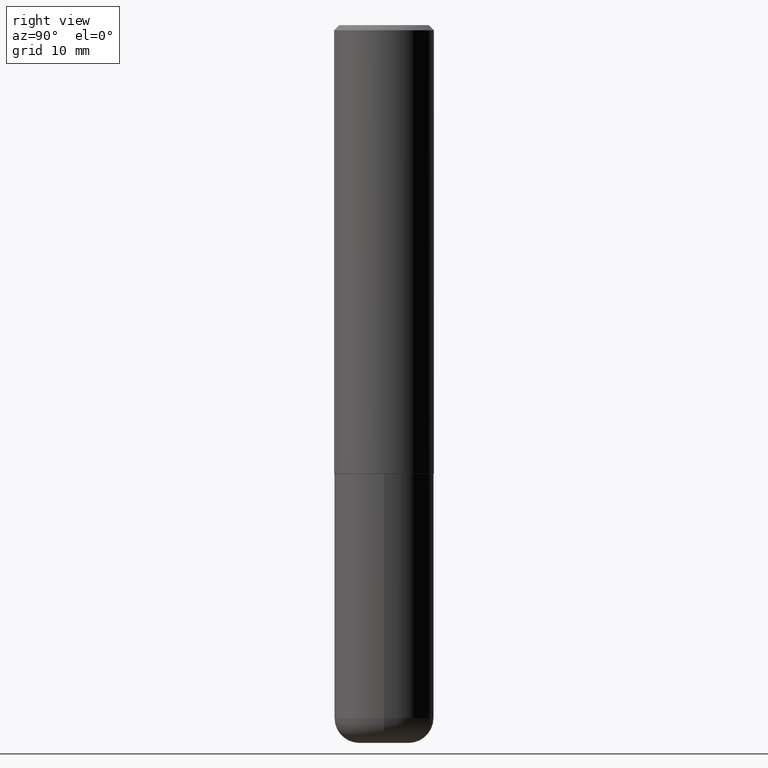
[diagram: clean part render]
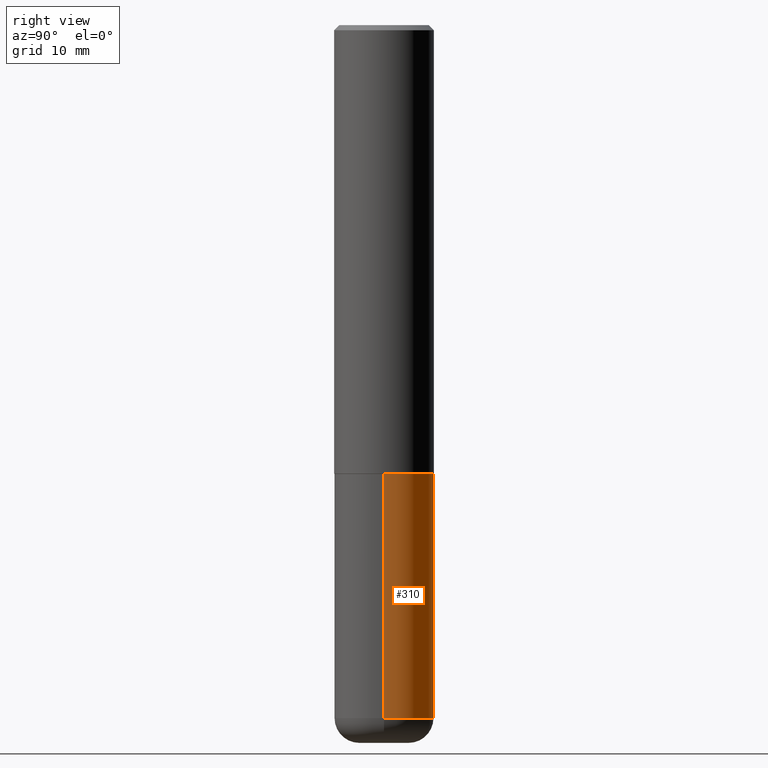
[diagram: same view with one face highlighted and labeled with its STEP entity id]
A machine part, right view. The second image highlights one B-rep face of the part: STEP entity #310.
In plain terms, the highlighted cylindrical surface (partial cylindrical patch) has radius 5 mm, axis along (-0, 0, 1).
Its self-contained STEP definition (entity closure, byte-faithful):
#5 = CARTESIAN_POINT ( 'NONE',  ( 0.000000000000000000, 0.000000000000000000, 0.000000000000000000 ) ) ;
#12 = VERTEX_POINT ( 'NONE', #279 ) ;
#14 = ORIENTED_EDGE ( 'NONE', *, *, #333, .T. ) ;
#29 = CYLINDRICAL_SURFACE ( 'NONE', #317, 0.1968499999999999694 ) ;
#30 = CARTESIAN_POINT ( 'NONE',  ( 6.691291747483769253E-29, -9.553391239342614783E-15, -2.736199999999999743 ) ) ;
#31 = DIRECTION ( 'NONE',  ( -2.445468806185136597E-29, 3.491481338843145583E-15, 1.000000000000000000 ) ) ;
#34 = LINE ( 'NONE', #89, #157 ) ;
#40 = VERTEX_POINT ( 'NONE', #352 ) ;
#41 = EDGE_LOOP ( 'NONE', ( #108, #14, #395, #402 ) ) ;
#54 = DIRECTION ( 'NONE',  ( -2.445468806185136877E-29, 3.491481338843145188E-15, 1.000000000000000000 ) ) ;
#55 = CIRCLE ( 'NONE', #221, 0.1968500000000000250 ) ;
#87 = CARTESIAN_POINT ( 'NONE',  ( 0.1968500000000001915, -1.092798744244515797E-14, -2.736199999999999743 ) ) ;
#89 = CARTESIAN_POINT ( 'NONE',  ( 0.1968499999999999694, -1.374596203102541411E-15, 9.598753983154298056E-30 ) ) ;
#96 = DIRECTION ( 'NONE',  ( -2.445468806185136877E-29, 3.491481338843145188E-15, 1.000000000000000000 ) ) ;
#105 = CARTESIAN_POINT ( 'NONE',  ( -0.1968499999999999694, 1.398703375343756999E-15, -9.682923725166782276E-30 ) ) ;
#108 = ORIENTED_EDGE ( 'NONE', *, *, #315, .T. ) ;
#143 = CARTESIAN_POINT ( 'NONE',  ( 4.332392537037587642E-29, -6.185508339894515992E-15, -1.771599999999999842 ) ) ;
#145 = EDGE_CURVE ( 'NONE', #12, #397, #383, .T. ) ;
#157 = VECTOR ( 'NONE', #54, 39.37007874015748143 ) ;
#158 = FACE_OUTER_BOUND ( 'NONE', #41, .T. ) ;
#164 = AXIS2_PLACEMENT_3D ( 'NONE', #143, #277, #408 ) ;
#173 = CARTESIAN_POINT ( 'NONE',  ( -0.1968499999999999694, -6.470746414274807600E-15, -1.771599999999999842 ) ) ;
#219 = DIRECTION ( 'NONE',  ( -2.445468806185136597E-29, 3.491481338843145583E-15, 1.000000000000000000 ) ) ;
#221 = AXIS2_PLACEMENT_3D ( 'NONE', #30, #31, #356 ) ;
#231 = VERTEX_POINT ( 'NONE', #87 ) ;
#277 = DIRECTION ( 'NONE',  ( -2.445468806185136597E-29, 3.491481338843145583E-15, 1.000000000000000000 ) ) ;
#279 = CARTESIAN_POINT ( 'NONE',  ( 0.1968499999999999694, -7.560104542997057600E-15, -1.771599999999999842 ) ) ;
#301 = EDGE_CURVE ( 'NONE', #231, #12, #34, .T. ) ;
#310 = ADVANCED_FACE ( 'NONE', ( #158 ), #29, .T. ) ;
#315 = EDGE_CURVE ( 'NONE', #231, #40, #55, .T. ) ;
#317 = AXIS2_PLACEMENT_3D ( 'NONE', #5, #219, #321 ) ;
#321 = DIRECTION ( 'NONE',  ( 1.000000000000000000, -6.982962677686266711E-15, 4.876176775795935793E-29 ) ) ;
#330 = VECTOR ( 'NONE', #96, 39.37007874015748143 ) ;
#333 = EDGE_CURVE ( 'NONE', #40, #397, #334, .T. ) ;
#334 = LINE ( 'NONE', #105, #330 ) ;
#352 = CARTESIAN_POINT ( 'NONE',  ( -0.1968500000000001915, -8.154687863998856206E-15, -2.736199999999999743 ) ) ;
#356 = DIRECTION ( 'NONE',  ( 1.000000000000000000, -6.982962677686267499E-15, 0.000000000000000000 ) ) ;
#383 = CIRCLE ( 'NONE', #164, 0.1968499999999999694 ) ;
#395 = ORIENTED_EDGE ( 'NONE', *, *, #145, .F. ) ;
#397 = VERTEX_POINT ( 'NONE', #173 ) ;
#402 = ORIENTED_EDGE ( 'NONE', *, *, #301, .F. ) ;
#408 = DIRECTION ( 'NONE',  ( 1.000000000000000000, -6.982962677686265133E-15, 0.000000000000000000 ) ) ;